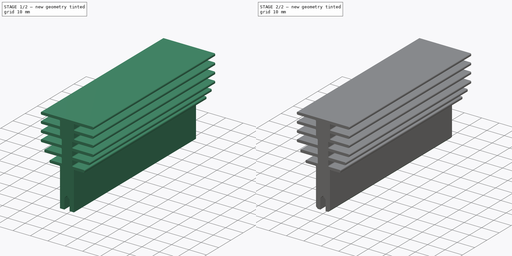
[diagram: build sequence overview — one tinted view per stage of 2, left to right]
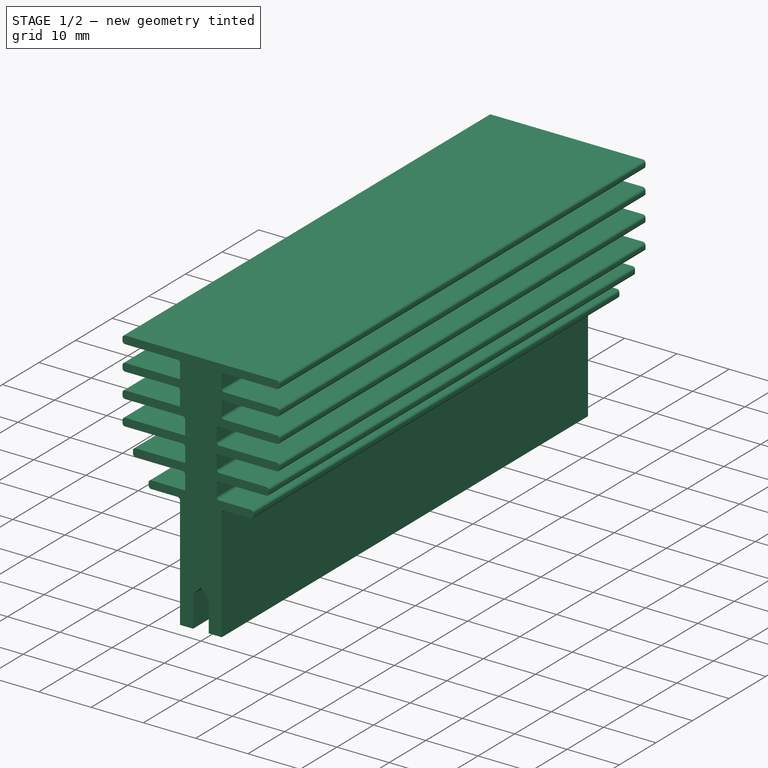
[diagram: stage 1 of 2 — iso view after this stage's code; geometry added in this stage tinted green]
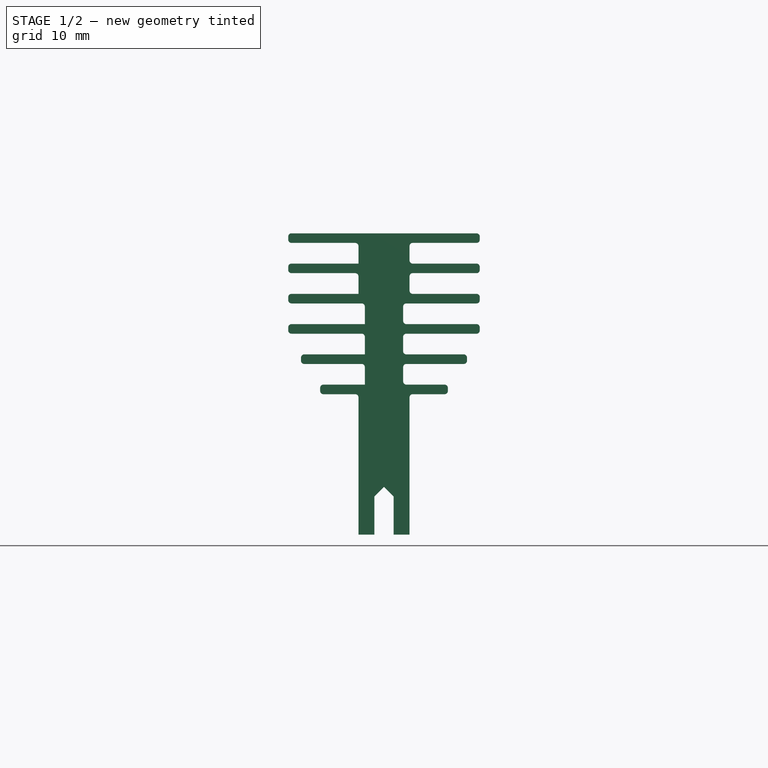
[diagram: stage 1 of 2 — front view after this stage's code; geometry added in this stage tinted green]
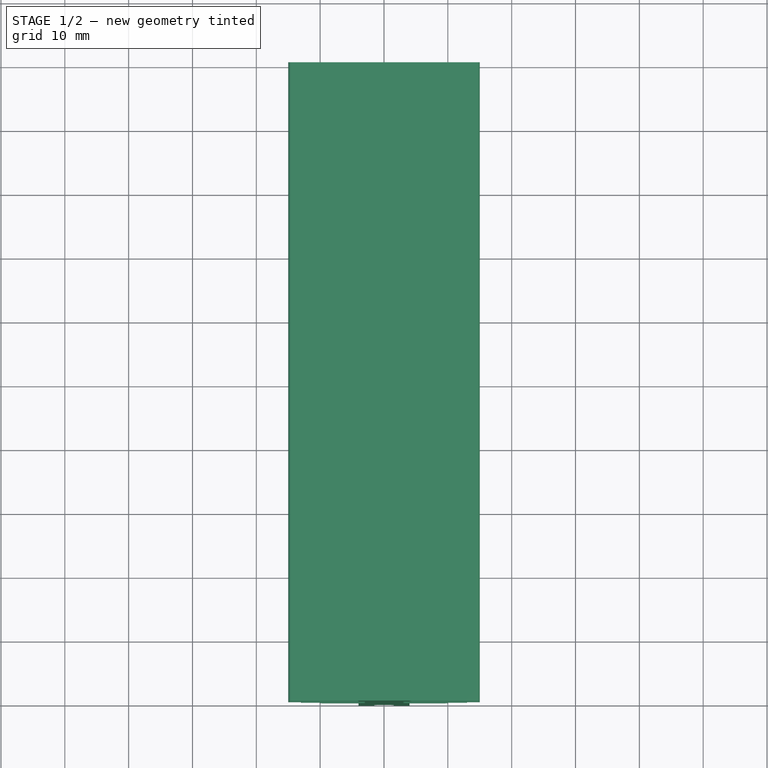
[diagram: stage 1 of 2 — top view after this stage's code; geometry added in this stage tinted green]
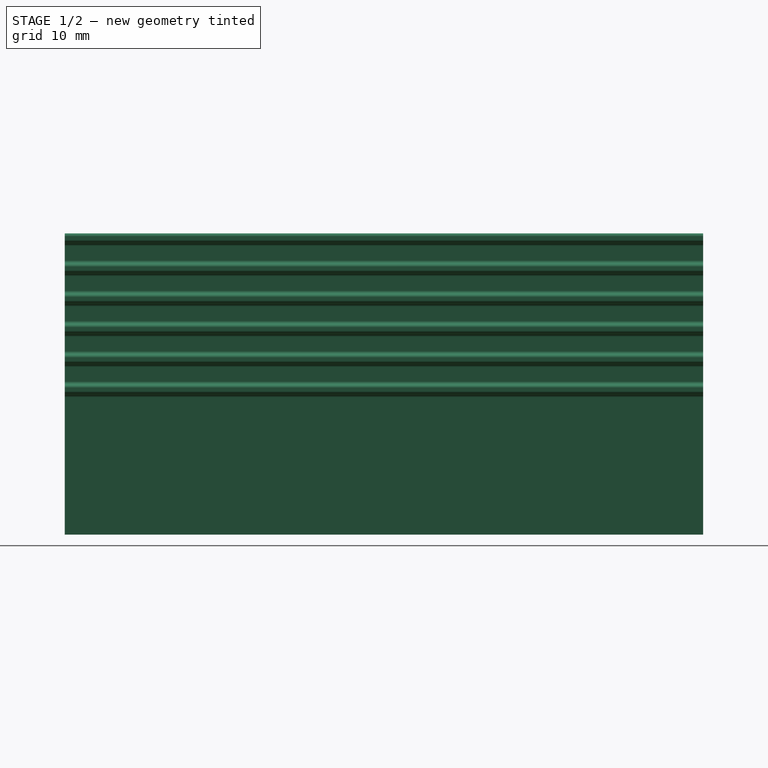
[diagram: stage 1 of 2 — right view after this stage's code; geometry added in this stage tinted green]
FCSTD DOCUMENT  (FreeCAD 0.19R24276 (Git))
Label: AAVID_OS507
License: All rights reserved
LicenseURL: http://en.wikipedia.org/wiki/All_rights_reserved
objects: Sketcher::SketchObject×1, PartDesign::Pad×1, PartDesign::Fillet×1, PartDesign::Chamfer×1, PartDesign::Body×1
note: 8 computed .brp shape members not serialized (recipe doc carries the construction recipe); baked Part::Feature solids carry a one-line shape summary decoded from their .brp

FEATURE [Sketcher::SketchObject] Sketch
  FullyConstrained = false
  MapMode = 5
  Placement = pos=(0,0,0) rot=(1,0,0;1.5708rad)
  Support = -> [XZ_Plane]
  sketch-geometry (54):
    g0: LineSegment StartX=0 StartY=7.5 StartZ=0 EndX=-1.5 EndY=6 EndZ=0
    g1: LineSegment StartX=-1.5 StartY=6 StartZ=0 EndX=-1.5 EndY=0 EndZ=0
    g2: LineSegment StartX=-1.5 StartY=0 StartZ=0 EndX=-4 EndY=0 EndZ=0
    g3: LineSegment StartX=-4 StartY=0 StartZ=0 EndX=-4 EndY=22 EndZ=0
    g4: LineSegment StartX=-4 StartY=22 StartZ=0 EndX=-10 EndY=22 EndZ=0
    g5: LineSegment StartX=-10 StartY=22 StartZ=0 EndX=-10 EndY=23.5 EndZ=0
    g6: LineSegment StartX=-10 StartY=23.5 StartZ=0 EndX=-3 EndY=23.5 EndZ=0
    g7: LineSegment StartX=-3 StartY=23.5 StartZ=0 EndX=-3 EndY=26.74 EndZ=0
    g8: LineSegment StartX=-3 StartY=26.74 StartZ=0 EndX=-13 EndY=26.74 EndZ=0
    g9: LineSegment StartX=-13 StartY=26.74 StartZ=0 EndX=-13 EndY=28.24 EndZ=0
    g10: LineSegment StartX=-13 StartY=28.24 StartZ=0 EndX=-3 EndY=28.24 EndZ=0
    g11: LineSegment StartX=-3 StartY=28.24 StartZ=0 EndX=-3 EndY=31.48 EndZ=0
    g12: LineSegment StartX=-3 StartY=31.48 StartZ=0 EndX=-15 EndY=31.48 EndZ=0
    g13: LineSegment StartX=-15 StartY=31.48 StartZ=0 EndX=-15 EndY=32.98 EndZ=0
    g14: LineSegment StartX=-15 StartY=32.98 StartZ=0 EndX=-3 EndY=32.98 EndZ=0
    g15: LineSegment StartX=-3 StartY=32.98 StartZ=0 EndX=-3 EndY=36.22 EndZ=0
    g16: LineSegment StartX=-3 StartY=36.22 StartZ=0 EndX=-15 EndY=36.22 EndZ=0
    g17: LineSegment StartX=-15 StartY=36.22 StartZ=0 EndX=-15 EndY=37.72 EndZ=0
    g18: LineSegment StartX=-15 StartY=37.72 StartZ=0 EndX=-4 EndY=37.72 EndZ=0
    g19: LineSegment StartX=-4 StartY=37.72 StartZ=0 EndX=-4 EndY=40.96 EndZ=0
    g20: LineSegment StartX=-4 StartY=40.96 StartZ=0 EndX=-15 EndY=40.96 EndZ=0
    g21: LineSegment StartX=-15 StartY=40.96 StartZ=0 EndX=-15 EndY=42.46 EndZ=0
    g22: LineSegment StartX=-15 StartY=42.46 StartZ=0 EndX=-4 EndY=42.46 EndZ=0
    g23: LineSegment StartX=-4 StartY=42.46 StartZ=0 EndX=-4 EndY=45.7 EndZ=0
    g24: LineSegment StartX=-4 StartY=45.7 StartZ=0 EndX=-15 EndY=45.7 EndZ=0
    g25: LineSegment StartX=-15 StartY=45.7 StartZ=0 EndX=-15 EndY=47.2 EndZ=0
    g26: LineSegment StartX=-15 StartY=47.2 StartZ=0 EndX=0 EndY=47.2 EndZ=0
    g27: LineSegment StartX=1.5 StartY=6 StartZ=0 EndX=1.5 EndY=1.42e-14 EndZ=0
    g28: LineSegment StartX=1.5 StartY=1.42e-14 StartZ=0 EndX=4 EndY=1.42e-14 EndZ=0
    g29: LineSegment StartX=4 StartY=1.42e-14 StartZ=0 EndX=4 EndY=22 EndZ=0
    g30: LineSegment StartX=4 StartY=22 StartZ=0 EndX=10 EndY=22 EndZ=0
    g31: LineSegment StartX=10 StartY=22 StartZ=0 EndX=10 EndY=23.5 EndZ=0
    g32: LineSegment StartX=10 StartY=23.5 StartZ=0 EndX=3 EndY=23.5 EndZ=0
    g33: LineSegment StartX=3 StartY=23.5 StartZ=0 EndX=3 EndY=26.74 EndZ=0
    g34: LineSegment StartX=3 StartY=26.74 StartZ=0 EndX=13 EndY=26.74 EndZ=0
    g35: LineSegment StartX=13 StartY=26.74 StartZ=0 EndX=13 EndY=28.24 EndZ=0
    g36: LineSegment StartX=13 StartY=28.24 StartZ=0 EndX=3 EndY=28.24 EndZ=0
    g37: LineSegment StartX=3 StartY=28.24 StartZ=0 EndX=3 EndY=31.48 EndZ=0
    g38: LineSegment StartX=3 StartY=31.48 StartZ=0 EndX=15 EndY=31.48 EndZ=0
    g39: LineSegment StartX=15 StartY=31.48 StartZ=0 EndX=15 EndY=32.98 EndZ=0
    g40: LineSegment StartX=15 StartY=32.98 StartZ=0 EndX=3 EndY=32.98 EndZ=0
    g41: LineSegment StartX=3 StartY=32.98 StartZ=0 EndX=3 EndY=36.22 EndZ=0
    g42: LineSegment StartX=3 StartY=36.22 StartZ=0 EndX=15 EndY=36.22 EndZ=0
    g43: LineSegment StartX=15 StartY=36.22 StartZ=0 EndX=15 EndY=37.72 EndZ=0
    g44: LineSegment StartX=15 StartY=37.72 StartZ=0 EndX=4 EndY=37.72 EndZ=0
    g45: LineSegment StartX=4 StartY=37.72 StartZ=0 EndX=4 EndY=40.96 EndZ=0
    g46: LineSegment StartX=4 StartY=40.96 StartZ=0 EndX=15 EndY=40.96 EndZ=0
    g47: LineSegment StartX=15 StartY=40.96 StartZ=0 EndX=15 EndY=42.46 EndZ=0
    g48: LineSegment StartX=15 StartY=42.46 StartZ=0 EndX=4 EndY=42.46 EndZ=0
    g49: LineSegment StartX=4 StartY=42.46 StartZ=0 EndX=4 EndY=45.7 EndZ=0
    g50: LineSegment StartX=4 StartY=45.7 StartZ=0 EndX=15 EndY=45.7 EndZ=0
    g51: LineSegment StartX=15 StartY=45.7 StartZ=0 EndX=15 EndY=47.2 EndZ=0
    g52: LineSegment StartX=0 StartY=7.5 StartZ=0 EndX=1.5 EndY=6 EndZ=0
    g53: LineSegment StartX=0 StartY=47.2 StartZ=0 EndX=15 EndY=47.2 EndZ=0
  constraints (147):
    c: PointOnObject(g0,g-2)
    c: Coincident(g1,g0)
    c: PointOnObject(g1,g-1)
    c: Vertical(g1)
    c: Coincident(g2,g1)
    c: PointOnObject(g2,g-1)
    c: Coincident(g3,g2)
    c: Vertical(g3)
    c: Coincident(g4,g3)
    c: Horizontal(g4)
    c: Coincident(g5,g4)
    c: Coincident(g6,g5)
    c: Horizontal(g6)
    c: Coincident(g7,g6)
    c: Vertical(g7)
    c: Coincident(g8,g7)
    c: Horizontal(g8)
    c: Coincident(g9,g8)
    c: Coincident(g10,g9)
    c: Horizontal(g10)
    c: Coincident(g11,g10)
    c: Coincident(g12,g11)
    c: Horizontal(g12)
    c: Coincident(g13,g12)
    c: Vertical(g13)
    c: Coincident(g14,g13)
    c: Horizontal(g14)
    c: Coincident(g15,g14)
    c: Vertical(g15)
    c: Coincident(g16,g15)
    c: Horizontal(g16)
    c: Coincident(g17,g16)
    c: Coincident(g18,g17)
    c: Horizontal(g18)
    c: Coincident(g19,g18)
    c: Coincident(g20,g19)
    c: Horizontal(g20)
    c: Coincident(g21,g20)
    c: Coincident(g22,g21)
    c: Horizontal(g22)
    c: Coincident(g23,g22)
    c: Vertical(g23)
    c: Coincident(g24,g23)
    c: Horizontal(g24)
    c: Coincident(g25,g24)
    c: Horizontal(g26)
    c: Vertical(g19)
    c: Vertical(g11)
    c: Vertical(g25)
    c: Vertical(g21)
    c: Vertical(g17)
    c: Vertical(g9)
    c: Vertical(g5)
    c: Coincident(g25,g26)
    c: DistanceX(g26,g26) = 15
    c: DistanceX(g2,g-1) = 4
    c: DistanceX(g1,g-1) = 1.5
    c: Angle(g1,g0) = 2.35619
    c: DistanceY(g1,g1) = 6
    c: DistanceX(g23,g26) = 4
    c: Equal(g24,g22)
    c: Equal(g20,g22)
    c: Equal(g18,g20)
    c: DistanceY(g-1,g26) = 47.2
    c: DistanceY(g3,g3) = 22
    c: DistanceY(g25,g25) = 1.5
    c: Equal(g25,g21)
    c: Equal(g21,g17)
    c: Equal(g17,g13)
    c: DistanceX(g15,g26) = 3
    c: Equal(g14,g12)
    c: Equal(g13,g9)
    c: Equal(g9,g5)
    c: Equal(g23,g19)
    c: Equal(g19,g15)
    c: Equal(g15,g11)
    c: Equal(g11,g7)
    c: Equal(g10,g8)
    c: DistanceX(g4,g4) = 6
    c: DistanceX(g10,g10) = 10
    c: Vertical(g27)
    c: Coincident(g28,g27)
    c: Coincident(g29,g28)
    c: Vertical(g29)
    c: Coincident(g30,g29)
    c: Horizontal(g30)
    c: Coincident(g31,g30)
    c: Coincident(g32,g31)
    c: Horizontal(g32)
    c: Coincident(g33,g32)
    c: Vertical(g33)
    c: Coincident(g34,g33)
    c: Horizontal(g34)
    c: Coincident(g35,g34)
    c: Coincident(g36,g35)
    c: Horizontal(g36)
    c: Coincident(g37,g36)
    c: Coincident(g38,g37)
    c: Horizontal(g38)
    c: Coincident(g39,g38)
    c: Vertical(g39)
    c: Coincident(g40,g39)
    c: Horizontal(g40)
    c: Coincident(g41,g40)
    c: Vertical(g41)
    c: Coincident(g42,g41)
    c: Horizontal(g42)
    c: Coincident(g43,g42)
    c: Coincident(g44,g43)
    c: Horizontal(g44)
    c: Coincident(g45,g44)
    c: Coincident(g46,g45)
    c: Horizontal(g46)
    c: Coincident(g47,g46)
    c: Coincident(g48,g47)
    c: Horizontal(g48)
    c: Coincident(g49,g48)
    c: Vertical(g49)
    c: Coincident(g50,g49)
    c: Horizontal(g50)
    c: Coincident(g51,g50)
    c: Vertical(g45)
    c: Vertical(g37)
    c: Vertical(g51)
    c: Vertical(g47)
    c: Vertical(g43)
    c: Vertical(g35)
    c: Vertical(g31)
    c: Equal(g50,g48)
    c: Equal(g46,g48)
    c: Equal(g44,g46)
    c: Equal(g51,g47)
    c: Equal(g47,g43)
    c: Equal(g43,g39)
    c: Equal(g40,g38)
    c: Equal(g39,g35)
    c: Equal(g35,g31)
    c: Equal(g49,g45)
    c: Equal(g45,g41)
    c: Equal(g41,g37)
    c: Equal(g37,g33)
    c: Equal(g36,g34)
    c: Coincident(g52,g0)
    c: Coincident(g52,g27)
    c: Coincident(g53,g26)
    c: Coincident(g53,g51)
    c: Horizontal(g53)
FEATURE [PartDesign::Pad] Pad
  Direction = (1,1,1)
  Length = 100
  Length2 = 99.9998
  Placement = pos=(0,0,0) rot=(1,0,0;1.5708rad)
  Profile = -> Sketch
  Refine = true
  Type = 0
FEATURE [PartDesign::Fillet] Fillet
  Base = -> Pad [Edge129,Edge117,Edge105,Edge93,Edge141,Edge123,Edge135,Edge132,Edge120,Edge111,Edge108,Edge99,Edge96,Edge86,Edge87,Edge147,Edge144,Edge150,Edge138,Edge126,Edge114,Edge102,Edge90,Edge14,Edge17,Edge20,Edge26,Edge29,Edge32,Edge38,Edge41,Edge44,Edge50,Edge53,Edge56,Edge62,Edge65,Edge68,Edge74,Edge77,+1 more]
  BaseFeature = -> Pad
  Placement = pos=(0,0,0) rot=(1,0,0;1.5708rad)
  Radius = 0.5
  Refine = true
  SupportTransform = false
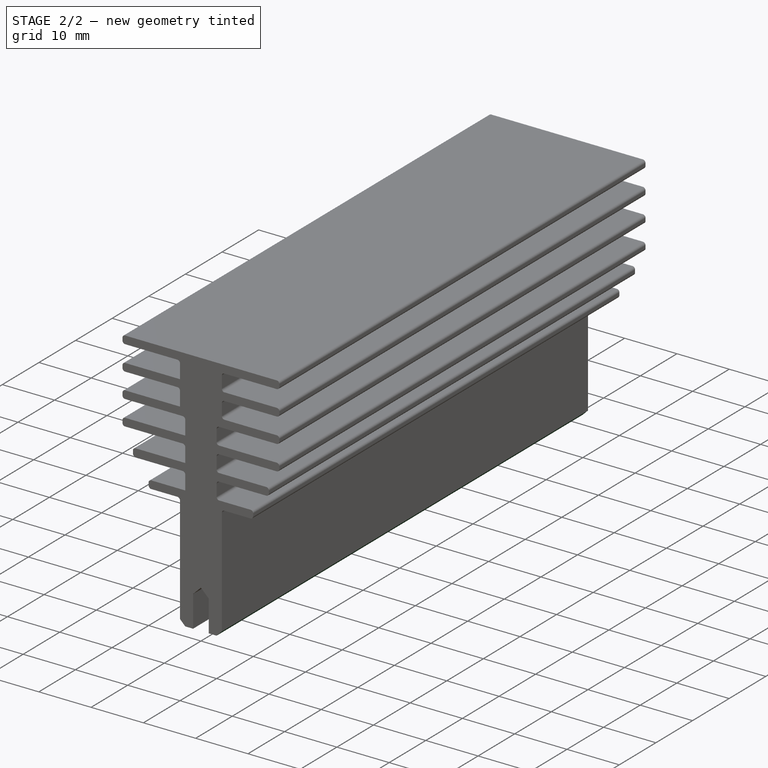
[diagram: stage 2 of 2 — iso view after this stage's code; geometry added in this stage tinted green]
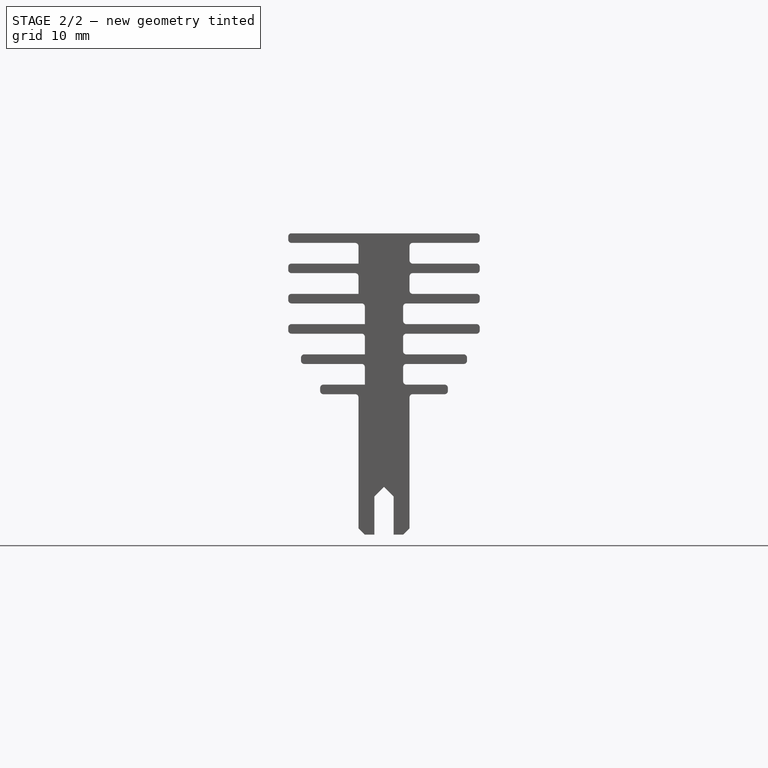
[diagram: stage 2 of 2 — front view after this stage's code; geometry added in this stage tinted green]
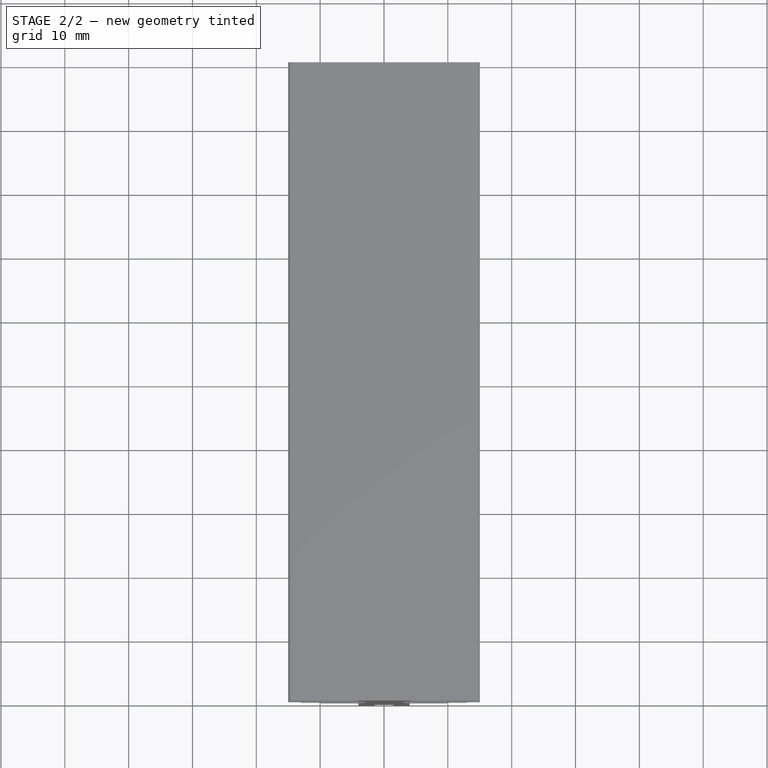
[diagram: stage 2 of 2 — top view after this stage's code; geometry added in this stage tinted green]
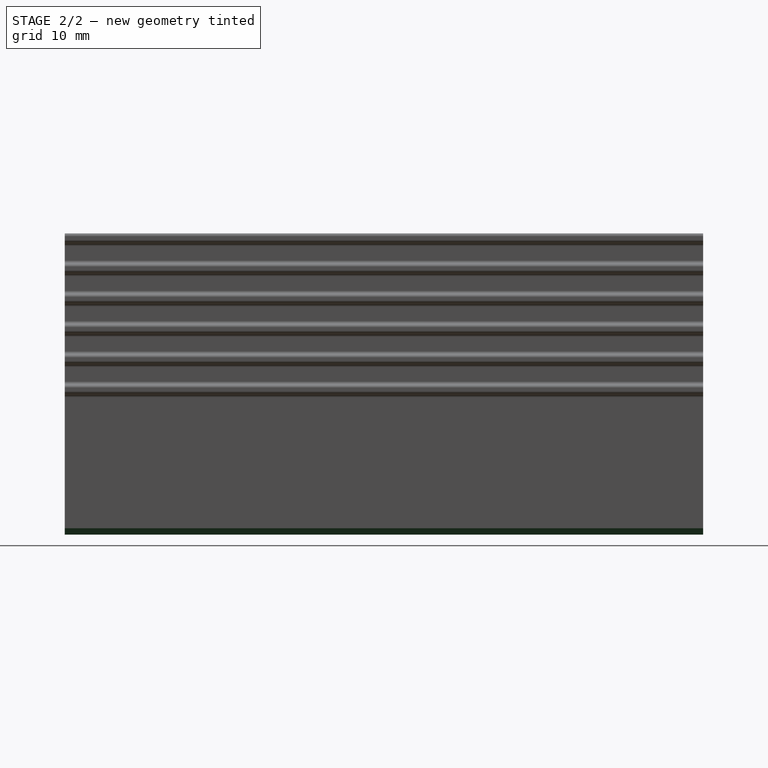
[diagram: stage 2 of 2 — right view after this stage's code; geometry added in this stage tinted green]
FEATURE [PartDesign::Chamfer] Chamfer
  Angle = 45
  Base = -> Fillet [Edge202,Edge3]
  BaseFeature = -> Fillet
  ChamferType = 0
  FlipDirection = false
  Placement = pos=(0,0,0) rot=(1,0,0;1.5708rad)
  Refine = true
  Size = 1
  Size2 = 1
  SupportTransform = false
FEATURE [PartDesign::Body] Body
  Group = -> [Sketch,Pad,Fillet,Chamfer]
  Origin = -> Origin
  Tip = -> Chamfer
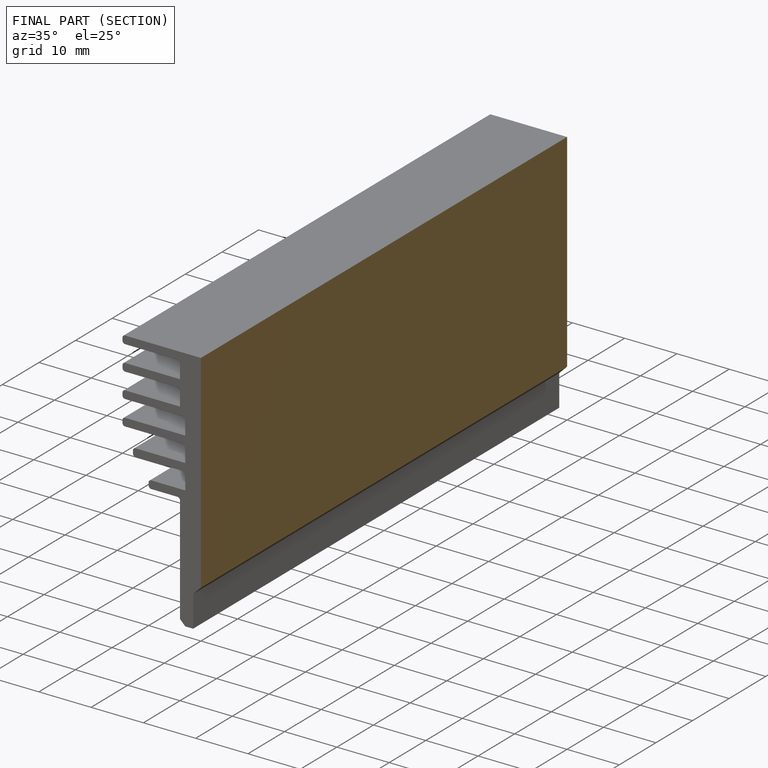
[diagram: finished part — half-section view (interior)]
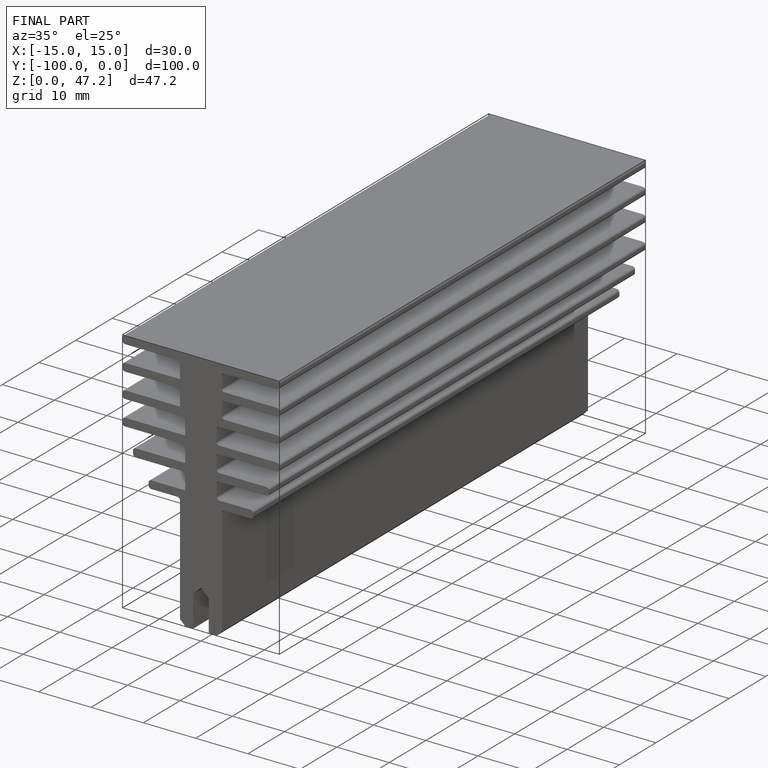
[diagram: finished part — iso view with bounding-box wireframe]
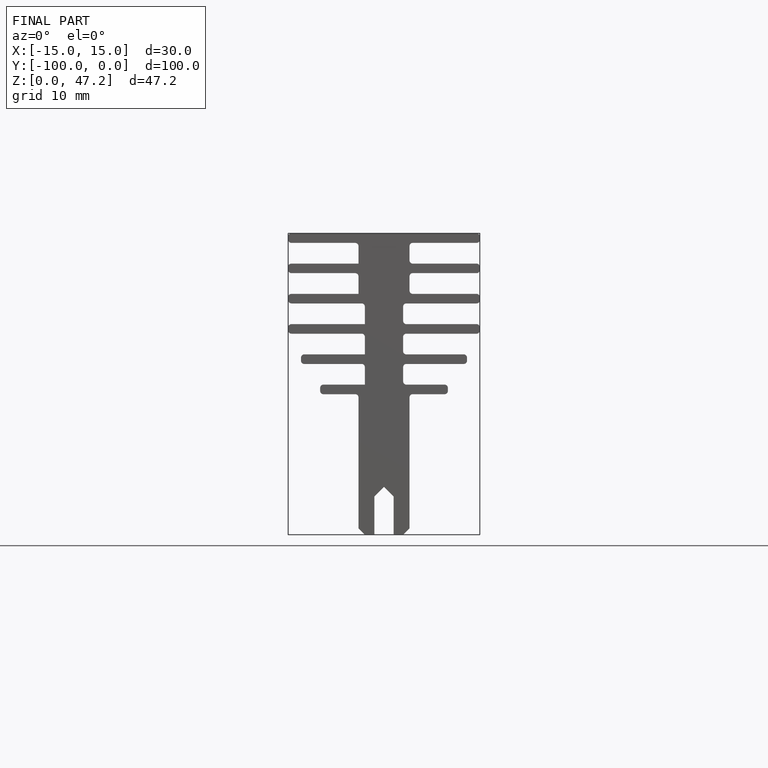
[diagram: finished part — front view with bounding-box wireframe]
